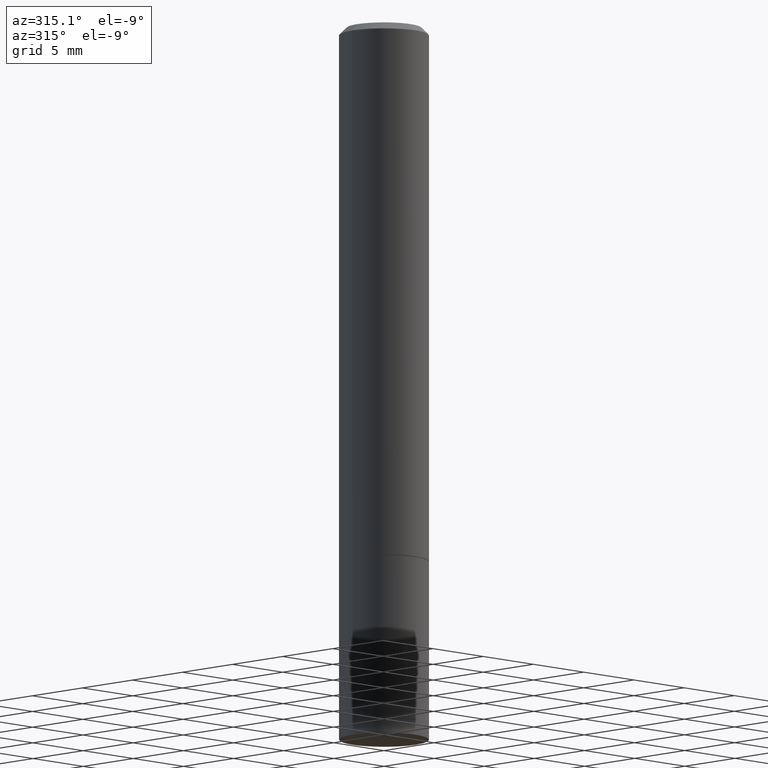
[diagram: clean part render]
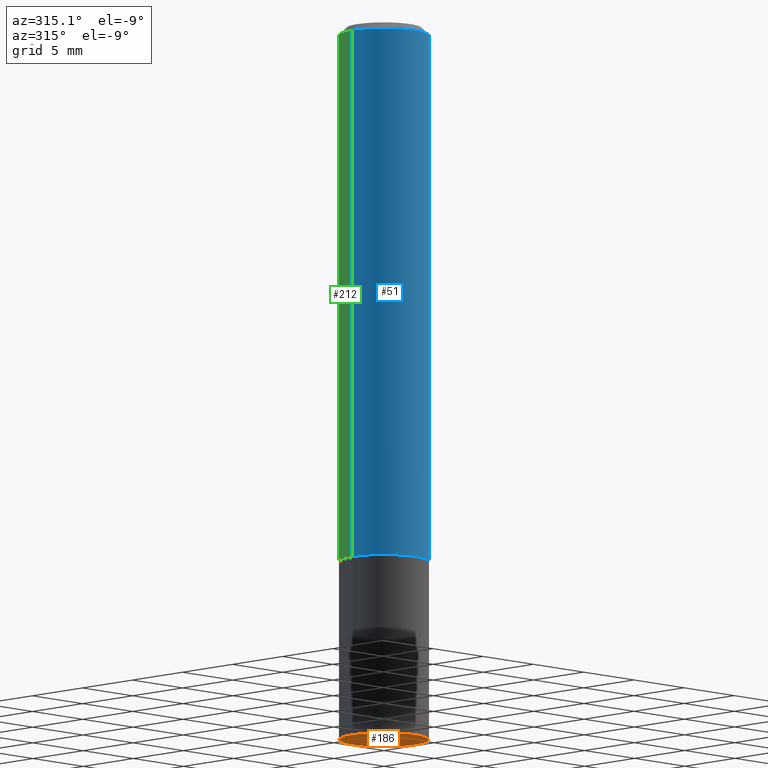
[diagram: same view with three faces highlighted in distinct colors, each labeled with its STEP entity id]
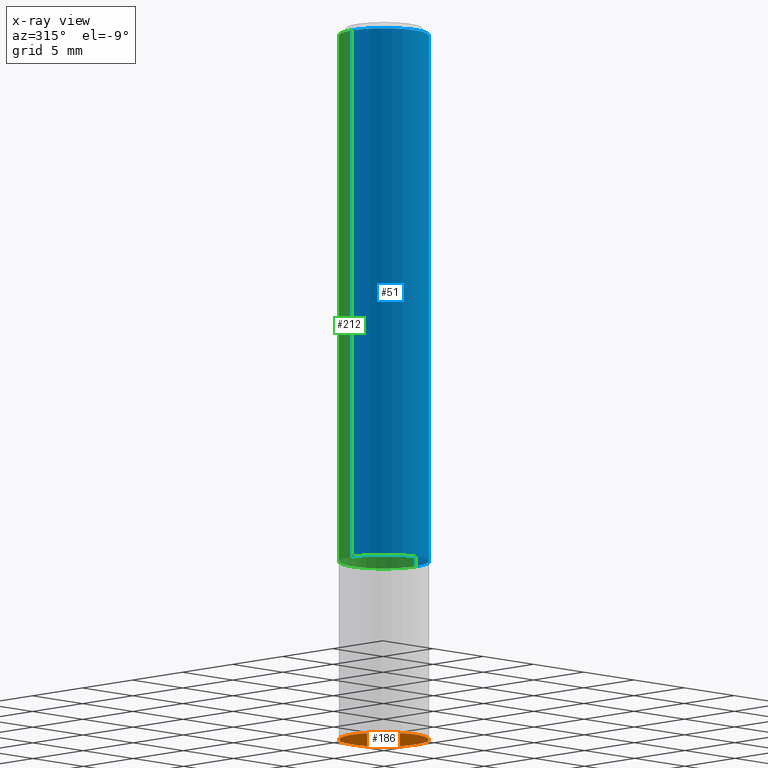
[diagram: x-ray of the same camera — body ghosted, the three highlighted faces saturated]
A machine part, auxiliary view with three faces highlighted in distinct colors.
The next image is the same camera in x-ray (body ghosted, the three faces saturated) — at least one of them is partly hidden behind the body in this view.
Their STEP definitions:

[orange] entity #186 — the highlighted planar face has unit normal (0, -0, -1).
#22 = EDGE_CURVE ( 'NONE', #335, #222, #183, .T. ) ;
#43 = DIRECTION ( 'NONE',  ( -2.445468806185136597E-29, 3.491481338843145583E-15, 1.000000000000000000 ) ) ;
#87 = EDGE_LOOP ( 'NONE', ( #238, #270 ) ) ;
#106 = CARTESIAN_POINT ( 'NONE',  ( 4.890937612370273194E-29, -6.982962677686291165E-15, -2.000000000000000000 ) ) ;
#117 = DIRECTION ( 'NONE',  ( -2.445468806185136597E-29, 3.491481338843145583E-15, 1.000000000000000000 ) ) ;
#134 = DIRECTION ( 'NONE',  ( -1.000000000000000000, 6.982962677686265922E-15, -4.876176775795935793E-29 ) ) ;
#151 = CARTESIAN_POINT ( 'NONE',  ( 4.890937612370273194E-29, -6.982962677686291165E-15, -2.000000000000000000 ) ) ;
#160 = PLANE ( 'NONE',  #210 ) ;
#175 = AXIS2_PLACEMENT_3D ( 'NONE', #151, #43, #295 ) ;
#183 = CIRCLE ( 'NONE', #175, 0.1250000000000000000 ) ;
#186 = ADVANCED_FACE ( 'NONE', ( #358 ), #160, .T. ) ;
#200 = CARTESIAN_POINT ( 'NONE',  ( 8.728703347108321496E-16, 0.1249999999999930195, -2.000000000000000444 ) ) ;
#210 = AXIS2_PLACEMENT_3D ( 'NONE', #200, #364, #134 ) ;
#222 = VERTEX_POINT ( 'NONE', #229 ) ;
#229 = CARTESIAN_POINT ( 'NONE',  ( 0.1250000000000000000, -7.855833012397075293E-15, -2.000000000000000000 ) ) ;
#238 = ORIENTED_EDGE ( 'NONE', *, *, #293, .F. ) ;
#240 = DIRECTION ( 'NONE',  ( 1.000000000000000000, -6.982962677686270655E-15, 0.000000000000000000 ) ) ;
#243 = AXIS2_PLACEMENT_3D ( 'NONE', #106, #117, #240 ) ;
#264 = CARTESIAN_POINT ( 'NONE',  ( -0.1250000000000000000, -5.221913923275378650E-15, -2.000000000000000000 ) ) ;
#270 = ORIENTED_EDGE ( 'NONE', *, *, #22, .F. ) ;
#293 = EDGE_CURVE ( 'NONE', #222, #335, #336, .T. ) ;
#295 = DIRECTION ( 'NONE',  ( 1.000000000000000000, -6.982962677686270655E-15, 0.000000000000000000 ) ) ;
#335 = VERTEX_POINT ( 'NONE', #264 ) ;
#336 = CIRCLE ( 'NONE', #243, 0.1250000000000000000 ) ;
#358 = FACE_OUTER_BOUND ( 'NONE', #87, .T. ) ;
#364 = DIRECTION ( 'NONE',  ( 2.438088387897960049E-29, -3.491481338843145188E-15, -1.000000000000000000 ) ) ;

[blue] entity #51 — the highlighted cylindrical surface (partial cylindrical patch) has radius 3.175 mm, axis along (-0, 0, 1).
#12 = ORIENTED_EDGE ( 'NONE', *, *, #310, .T. ) ;
#14 = CIRCLE ( 'NONE', #312, 0.1249999999999998057 ) ;
#20 = DIRECTION ( 'NONE',  ( -2.445468806185136877E-29, 3.491481338843145188E-15, 1.000000000000000000 ) ) ;
#29 = EDGE_CURVE ( 'NONE', #115, #327, #251, .T. ) ;
#48 = VERTEX_POINT ( 'NONE', #326 ) ;
#51 = ADVANCED_FACE ( 'NONE', ( #156 ), #122, .T. ) ;
#65 = CARTESIAN_POINT ( 'NONE',  ( -0.1249999999999998057, 8.030407079339190545E-16, -0.02000000000000002470 ) ) ;
#76 = CARTESIAN_POINT ( 'NONE',  ( -0.1249999999999999029, 8.881784197001245421E-16, -6.148668862818627323E-30 ) ) ;
#81 = AXIS2_PLACEMENT_3D ( 'NONE', #153, #247, #299 ) ;
#89 = ORIENTED_EDGE ( 'NONE', *, *, #265, .T. ) ;
#105 = VECTOR ( 'NONE', #195, 39.37007874015748143 ) ;
#109 = LINE ( 'NONE', #356, #318 ) ;
#115 = VERTEX_POINT ( 'NONE', #131 ) ;
#122 = CYLINDRICAL_SURFACE ( 'NONE', #81, 0.1249999999999999029 ) ;
#128 = DIRECTION ( 'NONE',  ( 1.000000000000000000, -6.982962677686270655E-15, 0.000000000000000000 ) ) ;
#131 = CARTESIAN_POINT ( 'NONE',  ( -0.1250000000000000278, -1.763601657151241241E-15, -1.498999999999999666 ) ) ;
#139 = DIRECTION ( 'NONE',  ( 1.000000000000000000, -6.982962677686267499E-15, 0.000000000000000000 ) ) ;
#153 = CARTESIAN_POINT ( 'NONE',  ( 0.000000000000000000, 0.000000000000000000, 0.000000000000000000 ) ) ;
#156 = FACE_OUTER_BOUND ( 'NONE', #285, .T. ) ;
#195 = DIRECTION ( 'NONE',  ( -2.445468806185136877E-29, 3.491481338843145188E-15, 1.000000000000000000 ) ) ;
#198 = CARTESIAN_POINT ( 'NONE',  ( 0.1249999999999998057, -9.273918764983031658E-16, -0.02000000000000002470 ) ) ;
#216 = CARTESIAN_POINT ( 'NONE',  ( 3.665757740471518732E-29, -5.233730526925875170E-15, -1.498999999999999666 ) ) ;
#218 = VERTEX_POINT ( 'NONE', #198 ) ;
#232 = CARTESIAN_POINT ( 'NONE',  ( 4.890937612370279289E-31, -6.982962677686299005E-17, -0.02000000000000002470 ) ) ;
#247 = DIRECTION ( 'NONE',  ( -2.445468806185136597E-29, 3.491481338843145583E-15, 1.000000000000000000 ) ) ;
#251 = LINE ( 'NONE', #76, #105 ) ;
#254 = DIRECTION ( 'NONE',  ( -2.445468806185136597E-29, 3.491481338843145583E-15, 1.000000000000000000 ) ) ;
#256 = CIRCLE ( 'NONE', #278, 0.1250000000000000000 ) ;
#265 = EDGE_CURVE ( 'NONE', #48, #218, #109, .T. ) ;
#278 = AXIS2_PLACEMENT_3D ( 'NONE', #216, #324, #128 ) ;
#284 = EDGE_CURVE ( 'NONE', #327, #218, #14, .T. ) ;
#285 = EDGE_LOOP ( 'NONE', ( #322, #12, #89, #350 ) ) ;
#299 = DIRECTION ( 'NONE',  ( 1.000000000000000000, -6.982962677686266711E-15, 4.876176775795935793E-29 ) ) ;
#310 = EDGE_CURVE ( 'NONE', #115, #48, #256, .T. ) ;
#312 = AXIS2_PLACEMENT_3D ( 'NONE', #232, #254, #139 ) ;
#318 = VECTOR ( 'NONE', #20, 39.37007874015748143 ) ;
#322 = ORIENTED_EDGE ( 'NONE', *, *, #29, .F. ) ;
#324 = DIRECTION ( 'NONE',  ( -2.445468806185136597E-29, 3.491481338843145583E-15, 1.000000000000000000 ) ) ;
#326 = CARTESIAN_POINT ( 'NONE',  ( 0.1250000000000000000, -6.106600861636658508E-15, -1.498999999999999666 ) ) ;
#327 = VERTEX_POINT ( 'NONE', #65 ) ;
#350 = ORIENTED_EDGE ( 'NONE', *, *, #284, .F. ) ;
#356 = CARTESIAN_POINT ( 'NONE',  ( 0.1249999999999999029, -8.728703347107826486E-16, 6.095220969744914837E-30 ) ) ;

[green] entity #212 — the highlighted cylindrical surface (partial cylindrical patch) has radius 3.175 mm, axis along (-0, 0, 1).
#4 = CARTESIAN_POINT ( 'NONE',  ( 4.890937612370279289E-31, -6.982962677686299005E-17, -0.02000000000000002470 ) ) ;
#20 = DIRECTION ( 'NONE',  ( -2.445468806185136877E-29, 3.491481338843145188E-15, 1.000000000000000000 ) ) ;
#23 = FACE_OUTER_BOUND ( 'NONE', #125, .T. ) ;
#25 = DIRECTION ( 'NONE',  ( -2.445468806185136597E-29, 3.491481338843145583E-15, 1.000000000000000000 ) ) ;
#29 = EDGE_CURVE ( 'NONE', #115, #327, #251, .T. ) ;
#44 = CIRCLE ( 'NONE', #298, 0.1250000000000000000 ) ;
#48 = VERTEX_POINT ( 'NONE', #326 ) ;
#65 = CARTESIAN_POINT ( 'NONE',  ( -0.1249999999999998057, 8.030407079339190545E-16, -0.02000000000000002470 ) ) ;
#67 = ORIENTED_EDGE ( 'NONE', *, *, #347, .F. ) ;
#76 = CARTESIAN_POINT ( 'NONE',  ( -0.1249999999999999029, 8.881784197001245421E-16, -6.148668862818627323E-30 ) ) ;
#79 = ORIENTED_EDGE ( 'NONE', *, *, #29, .T. ) ;
#83 = DIRECTION ( 'NONE',  ( -2.445468806185136597E-29, 3.491481338843145583E-15, 1.000000000000000000 ) ) ;
#105 = VECTOR ( 'NONE', #195, 39.37007874015748143 ) ;
#109 = LINE ( 'NONE', #356, #318 ) ;
#110 = DIRECTION ( 'NONE',  ( -2.445468806185136597E-29, 3.491481338843145583E-15, 1.000000000000000000 ) ) ;
#114 = CIRCLE ( 'NONE', #325, 0.1249999999999998057 ) ;
#115 = VERTEX_POINT ( 'NONE', #131 ) ;
#125 = EDGE_LOOP ( 'NONE', ( #272, #79, #67, #271 ) ) ;
#131 = CARTESIAN_POINT ( 'NONE',  ( -0.1250000000000000278, -1.763601657151241241E-15, -1.498999999999999666 ) ) ;
#162 = DIRECTION ( 'NONE',  ( 1.000000000000000000, -6.982962677686270655E-15, 0.000000000000000000 ) ) ;
#193 = EDGE_CURVE ( 'NONE', #48, #115, #44, .T. ) ;
#195 = DIRECTION ( 'NONE',  ( -2.445468806185136877E-29, 3.491481338843145188E-15, 1.000000000000000000 ) ) ;
#198 = CARTESIAN_POINT ( 'NONE',  ( 0.1249999999999998057, -9.273918764983031658E-16, -0.02000000000000002470 ) ) ;
#212 = ADVANCED_FACE ( 'NONE', ( #23 ), #302, .T. ) ;
#218 = VERTEX_POINT ( 'NONE', #198 ) ;
#239 = DIRECTION ( 'NONE',  ( 1.000000000000000000, -6.982962677686267499E-15, 0.000000000000000000 ) ) ;
#251 = LINE ( 'NONE', #76, #105 ) ;
#265 = EDGE_CURVE ( 'NONE', #48, #218, #109, .T. ) ;
#271 = ORIENTED_EDGE ( 'NONE', *, *, #265, .F. ) ;
#272 = ORIENTED_EDGE ( 'NONE', *, *, #193, .T. ) ;
#286 = AXIS2_PLACEMENT_3D ( 'NONE', #308, #83, #337 ) ;
#298 = AXIS2_PLACEMENT_3D ( 'NONE', #304, #25, #162 ) ;
#302 = CYLINDRICAL_SURFACE ( 'NONE', #286, 0.1249999999999999029 ) ;
#304 = CARTESIAN_POINT ( 'NONE',  ( 3.665757740471518732E-29, -5.233730526925875170E-15, -1.498999999999999666 ) ) ;
#308 = CARTESIAN_POINT ( 'NONE',  ( 0.000000000000000000, 0.000000000000000000, 0.000000000000000000 ) ) ;
#318 = VECTOR ( 'NONE', #20, 39.37007874015748143 ) ;
#325 = AXIS2_PLACEMENT_3D ( 'NONE', #4, #110, #239 ) ;
#326 = CARTESIAN_POINT ( 'NONE',  ( 0.1250000000000000000, -6.106600861636658508E-15, -1.498999999999999666 ) ) ;
#327 = VERTEX_POINT ( 'NONE', #65 ) ;
#337 = DIRECTION ( 'NONE',  ( 1.000000000000000000, -6.982962677686266711E-15, 4.876176775795935793E-29 ) ) ;
#347 = EDGE_CURVE ( 'NONE', #218, #327, #114, .T. ) ;
#356 = CARTESIAN_POINT ( 'NONE',  ( 0.1249999999999999029, -8.728703347107826486E-16, 6.095220969744914837E-30 ) ) ;